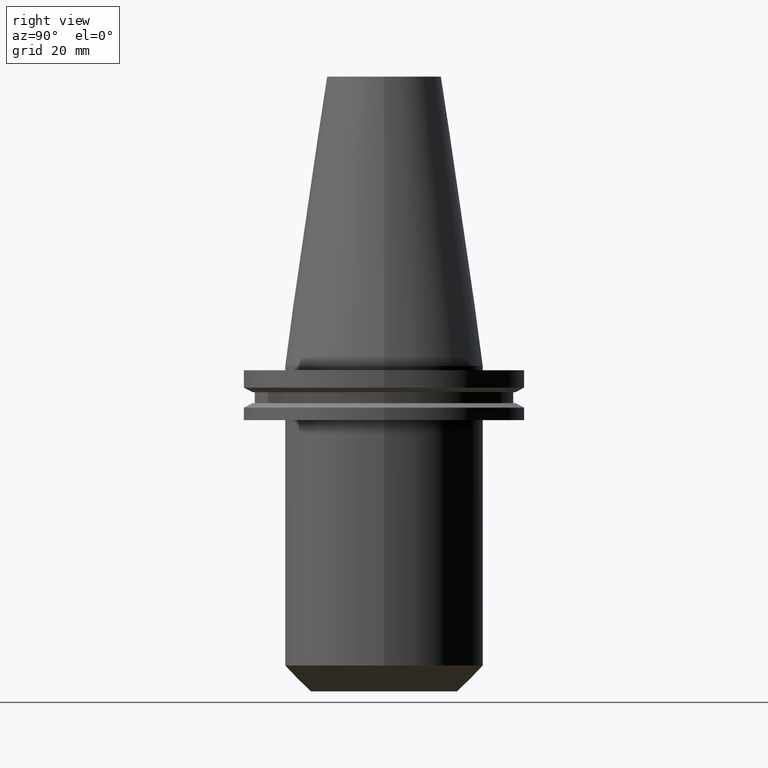
[diagram: clean part render]
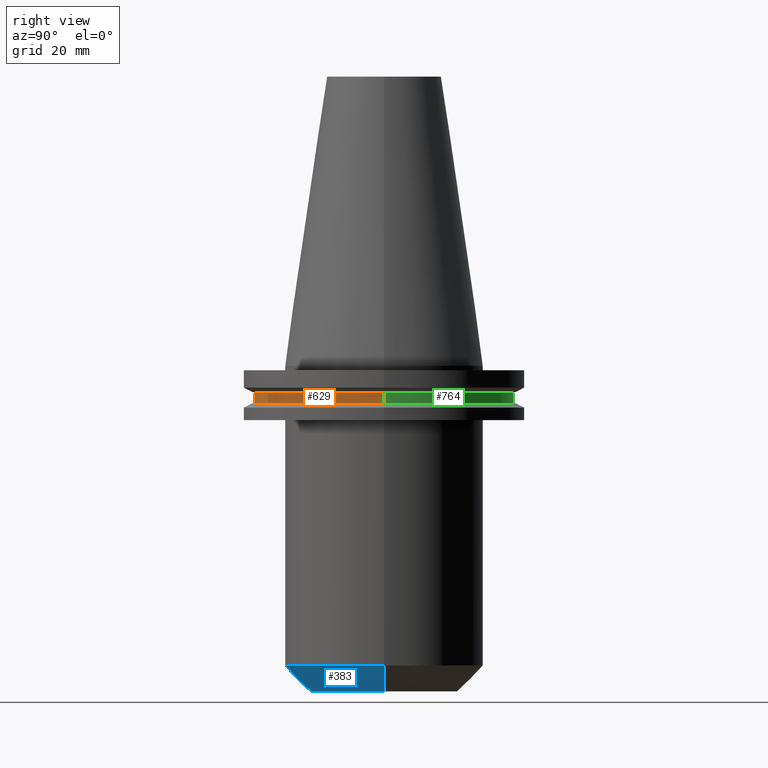
[diagram: same view with three faces highlighted in distinct colors, each labeled with its STEP entity id]
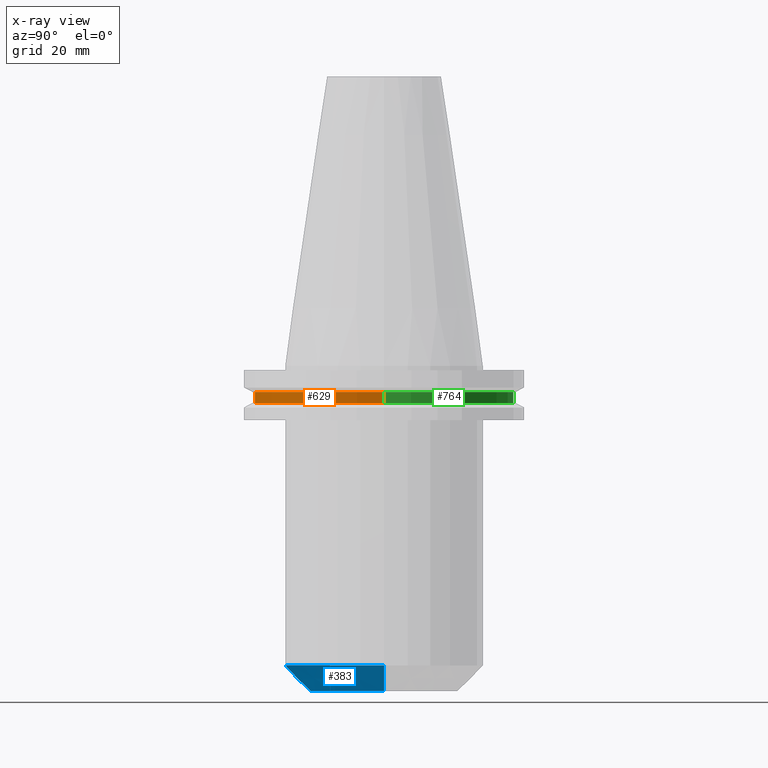
[diagram: x-ray of the same camera — body ghosted, the three highlighted faces saturated]
A machine part, right view with three faces highlighted in distinct colors.
The next image is the same camera in x-ray (body ghosted, the three faces saturated) — at least one of them is partly hidden behind the body in this view.
Their STEP definitions:

[orange] entity #629 — the highlighted cylindrical surface (partial cylindrical patch) has radius 45.645 mm, axis along (-0, -0, 1).
#19 = LINE ( 'NONE', #621, #660 ) ;
#25 = EDGE_CURVE ( 'NONE', #130, #663, #19, .T. ) ;
#85 = CIRCLE ( 'NONE', #745, 45.64500000000000313 ) ;
#95 = ORIENTED_EDGE ( 'NONE', *, *, #277, .F. ) ;
#101 = VECTOR ( 'NONE', #636, 1000.000000000000000 ) ;
#109 = CIRCLE ( 'NONE', #600, 45.64500000000000313 ) ;
#118 = DIRECTION ( 'NONE',  ( 1.000000000000000000, 0.000000000000000000, 0.000000000000000000 ) ) ;
#130 = VERTEX_POINT ( 'NONE', #746 ) ;
#143 = VERTEX_POINT ( 'NONE', #151 ) ;
#151 = CARTESIAN_POINT ( 'NONE',  ( -45.64500000000000313, 5.589900314708094957E-15, -13.05499999999999794 ) ) ;
#182 = CARTESIAN_POINT ( 'NONE',  ( -45.64500000000000313, 5.589900314708094957E-15, 101.5999999999999943 ) ) ;
#210 = CYLINDRICAL_SURFACE ( 'NONE', #307, 45.64500000000000313 ) ;
#272 = CARTESIAN_POINT ( 'NONE',  ( 45.64500000000000313, 0.000000000000000000, -9.204999999999991189 ) ) ;
#275 = DIRECTION ( 'NONE',  ( 1.000000000000000000, 0.000000000000000000, 0.000000000000000000 ) ) ;
#277 = EDGE_CURVE ( 'NONE', #458, #663, #85, .T. ) ;
#307 = AXIS2_PLACEMENT_3D ( 'NONE', #633, #565, #275 ) ;
#319 = EDGE_CURVE ( 'NONE', #143, #130, #109, .T. ) ;
#351 = LINE ( 'NONE', #182, #101 ) ;
#398 = FACE_OUTER_BOUND ( 'NONE', #587, .T. ) ;
#413 = DIRECTION ( 'NONE',  ( -0.000000000000000000, -0.000000000000000000, 1.000000000000000000 ) ) ;
#458 = VERTEX_POINT ( 'NONE', #611 ) ;
#528 = CARTESIAN_POINT ( 'NONE',  ( 0.000000000000000000, 0.000000000000000000, -9.204999999999991189 ) ) ;
#546 = ORIENTED_EDGE ( 'NONE', *, *, #773, .F. ) ;
#556 = ORIENTED_EDGE ( 'NONE', *, *, #319, .T. ) ;
#565 = DIRECTION ( 'NONE',  ( -0.000000000000000000, -0.000000000000000000, 1.000000000000000000 ) ) ;
#586 = DIRECTION ( 'NONE',  ( -0.000000000000000000, -0.000000000000000000, 1.000000000000000000 ) ) ;
#587 = EDGE_LOOP ( 'NONE', ( #546, #556, #676, #95 ) ) ;
#600 = AXIS2_PLACEMENT_3D ( 'NONE', #708, #413, #651 ) ;
#611 = CARTESIAN_POINT ( 'NONE',  ( -45.64500000000000313, 5.589900314708094957E-15, -9.204999999999991189 ) ) ;
#621 = CARTESIAN_POINT ( 'NONE',  ( 45.64500000000000313, 0.000000000000000000, 101.5999999999999943 ) ) ;
#629 = ADVANCED_FACE ( 'NONE', ( #398 ), #210, .T. ) ;
#633 = CARTESIAN_POINT ( 'NONE',  ( 0.000000000000000000, 0.000000000000000000, 101.5999999999999943 ) ) ;
#636 = DIRECTION ( 'NONE',  ( -0.000000000000000000, -0.000000000000000000, 1.000000000000000000 ) ) ;
#651 = DIRECTION ( 'NONE',  ( 1.000000000000000000, 0.000000000000000000, 0.000000000000000000 ) ) ;
#660 = VECTOR ( 'NONE', #670, 1000.000000000000000 ) ;
#663 = VERTEX_POINT ( 'NONE', #272 ) ;
#670 = DIRECTION ( 'NONE',  ( -0.000000000000000000, -0.000000000000000000, 1.000000000000000000 ) ) ;
#676 = ORIENTED_EDGE ( 'NONE', *, *, #25, .T. ) ;
#708 = CARTESIAN_POINT ( 'NONE',  ( 0.000000000000000000, 0.000000000000000000, -13.05499999999999794 ) ) ;
#745 = AXIS2_PLACEMENT_3D ( 'NONE', #528, #586, #118 ) ;
#746 = CARTESIAN_POINT ( 'NONE',  ( 45.64500000000000313, 0.000000000000000000, -13.05499999999999794 ) ) ;
#773 = EDGE_CURVE ( 'NONE', #143, #458, #351, .T. ) ;

[blue] entity #383 — the highlighted conical surface has half-angle 45 deg.
#57 = CARTESIAN_POINT ( 'NONE',  ( -25.82499999999994955, 3.719864652410080914E-15, -114.2999999999999972 ) ) ;
#90 = VECTOR ( 'NONE', #392, 1000.000000000000114 ) ;
#102 = LINE ( 'NONE', #513, #90 ) ;
#161 = EDGE_CURVE ( 'NONE', #274, #679, #728, .T. ) ;
#163 = DIRECTION ( 'NONE',  ( -0.000000000000000000, -0.000000000000000000, 1.000000000000000000 ) ) ;
#214 = ORIENTED_EDGE ( 'NONE', *, *, #267, .F. ) ;
#228 = CARTESIAN_POINT ( 'NONE',  ( 0.000000000000000000, 0.000000000000000000, -114.2999999999999972 ) ) ;
#231 = DIRECTION ( 'NONE',  ( 1.000000000000000000, 0.000000000000000000, 0.000000000000000000 ) ) ;
#240 = CARTESIAN_POINT ( 'NONE',  ( -25.82499999999994955, 3.162650358798033308E-15, -114.2999999999999972 ) ) ;
#254 = ORIENTED_EDGE ( 'NONE', *, *, #161, .T. ) ;
#267 = EDGE_CURVE ( 'NONE', #542, #391, #759, .T. ) ;
#274 = VERTEX_POINT ( 'NONE', #57 ) ;
#276 = DIRECTION ( 'NONE',  ( 1.000000000000000000, 0.000000000000000000, 0.000000000000000000 ) ) ;
#285 = EDGE_CURVE ( 'NONE', #274, #542, #590, .T. ) ;
#361 = CARTESIAN_POINT ( 'NONE',  ( 0.000000000000000000, 0.000000000000000000, -105.2000000000000028 ) ) ;
#383 = ADVANCED_FACE ( 'NONE', ( #596 ), #575, .T. ) ;
#391 = VERTEX_POINT ( 'NONE', #526 ) ;
#392 = DIRECTION ( 'NONE',  ( 0.7071067811865489050, 0.000000000000000000, 0.7071067811865460184 ) ) ;
#417 = DIRECTION ( 'NONE',  ( -0.000000000000000000, -0.000000000000000000, 1.000000000000000000 ) ) ;
#441 = AXIS2_PLACEMENT_3D ( 'NONE', #361, #417, #231 ) ;
#463 = DIRECTION ( 'NONE',  ( -0.000000000000000000, -0.000000000000000000, 1.000000000000000000 ) ) ;
#493 = ORIENTED_EDGE ( 'NONE', *, *, #638, .T. ) ;
#513 = CARTESIAN_POINT ( 'NONE',  ( 25.82499999999994955, 0.000000000000000000, -114.2999999999999972 ) ) ;
#518 = VECTOR ( 'NONE', #534, 1000.000000000000114 ) ;
#526 = CARTESIAN_POINT ( 'NONE',  ( 34.92499999999998295, 0.000000000000000000, -105.2000000000000028 ) ) ;
#534 = DIRECTION ( 'NONE',  ( -0.7071067811865489050, 8.659560562354951347E-17, 0.7071067811865460184 ) ) ;
#542 = VERTEX_POINT ( 'NONE', #687 ) ;
#569 = CARTESIAN_POINT ( 'NONE',  ( 0.000000000000000000, 0.000000000000000000, -114.2999999999999972 ) ) ;
#575 = CONICAL_SURFACE ( 'NONE', #703, 25.82499999999994955, 0.7853981633974503884 ) ;
#590 = LINE ( 'NONE', #240, #518 ) ;
#596 = FACE_OUTER_BOUND ( 'NONE', #667, .T. ) ;
#638 = EDGE_CURVE ( 'NONE', #679, #391, #102, .T. ) ;
#652 = ORIENTED_EDGE ( 'NONE', *, *, #285, .F. ) ;
#667 = EDGE_LOOP ( 'NONE', ( #652, #254, #493, #214 ) ) ;
#679 = VERTEX_POINT ( 'NONE', #749 ) ;
#687 = CARTESIAN_POINT ( 'NONE',  ( -34.92499999999998295, 4.277078946022130098E-15, -105.2000000000000028 ) ) ;
#702 = DIRECTION ( 'NONE',  ( 1.000000000000000000, 0.000000000000000000, 0.000000000000000000 ) ) ;
#703 = AXIS2_PLACEMENT_3D ( 'NONE', #228, #463, #702 ) ;
#713 = AXIS2_PLACEMENT_3D ( 'NONE', #569, #163, #276 ) ;
#728 = CIRCLE ( 'NONE', #713, 25.82499999999994955 ) ;
#749 = CARTESIAN_POINT ( 'NONE',  ( 25.82499999999994955, 0.000000000000000000, -114.2999999999999972 ) ) ;
#759 = CIRCLE ( 'NONE', #441, 34.92499999999998295 ) ;

[green] entity #764 — the highlighted cylindrical surface (partial cylindrical patch) has radius 45.645 mm, axis along (-0, -0, 1).
#19 = LINE ( 'NONE', #621, #660 ) ;
#22 = CIRCLE ( 'NONE', #209, 45.64500000000000313 ) ;
#23 = CARTESIAN_POINT ( 'NONE',  ( 0.000000000000000000, 0.000000000000000000, -13.05499999999999794 ) ) ;
#25 = EDGE_CURVE ( 'NONE', #130, #663, #19, .T. ) ;
#101 = VECTOR ( 'NONE', #636, 1000.000000000000000 ) ;
#115 = CARTESIAN_POINT ( 'NONE',  ( 0.000000000000000000, 0.000000000000000000, 101.5999999999999943 ) ) ;
#129 = DIRECTION ( 'NONE',  ( 1.000000000000000000, 0.000000000000000000, 0.000000000000000000 ) ) ;
#130 = VERTEX_POINT ( 'NONE', #746 ) ;
#143 = VERTEX_POINT ( 'NONE', #151 ) ;
#149 = ORIENTED_EDGE ( 'NONE', *, *, #773, .T. ) ;
#151 = CARTESIAN_POINT ( 'NONE',  ( -45.64500000000000313, 5.589900314708094957E-15, -13.05499999999999794 ) ) ;
#182 = CARTESIAN_POINT ( 'NONE',  ( -45.64500000000000313, 5.589900314708094957E-15, 101.5999999999999943 ) ) ;
#206 = DIRECTION ( 'NONE',  ( -0.000000000000000000, -0.000000000000000000, 1.000000000000000000 ) ) ;
#209 = AXIS2_PLACEMENT_3D ( 'NONE', #402, #216, #287 ) ;
#216 = DIRECTION ( 'NONE',  ( -0.000000000000000000, -0.000000000000000000, 1.000000000000000000 ) ) ;
#219 = EDGE_CURVE ( 'NONE', #663, #458, #22, .T. ) ;
#249 = AXIS2_PLACEMENT_3D ( 'NONE', #23, #206, #129 ) ;
#266 = EDGE_LOOP ( 'NONE', ( #270, #149, #737, #685 ) ) ;
#270 = ORIENTED_EDGE ( 'NONE', *, *, #459, .T. ) ;
#272 = CARTESIAN_POINT ( 'NONE',  ( 45.64500000000000313, 0.000000000000000000, -9.204999999999991189 ) ) ;
#286 = DIRECTION ( 'NONE',  ( 1.000000000000000000, 0.000000000000000000, 0.000000000000000000 ) ) ;
#287 = DIRECTION ( 'NONE',  ( 1.000000000000000000, 0.000000000000000000, 0.000000000000000000 ) ) ;
#351 = LINE ( 'NONE', #182, #101 ) ;
#402 = CARTESIAN_POINT ( 'NONE',  ( 0.000000000000000000, 0.000000000000000000, -9.204999999999991189 ) ) ;
#458 = VERTEX_POINT ( 'NONE', #611 ) ;
#459 = EDGE_CURVE ( 'NONE', #130, #143, #732, .T. ) ;
#531 = AXIS2_PLACEMENT_3D ( 'NONE', #115, #581, #286 ) ;
#581 = DIRECTION ( 'NONE',  ( -0.000000000000000000, -0.000000000000000000, 1.000000000000000000 ) ) ;
#611 = CARTESIAN_POINT ( 'NONE',  ( -45.64500000000000313, 5.589900314708094957E-15, -9.204999999999991189 ) ) ;
#621 = CARTESIAN_POINT ( 'NONE',  ( 45.64500000000000313, 0.000000000000000000, 101.5999999999999943 ) ) ;
#636 = DIRECTION ( 'NONE',  ( -0.000000000000000000, -0.000000000000000000, 1.000000000000000000 ) ) ;
#660 = VECTOR ( 'NONE', #670, 1000.000000000000000 ) ;
#663 = VERTEX_POINT ( 'NONE', #272 ) ;
#670 = DIRECTION ( 'NONE',  ( -0.000000000000000000, -0.000000000000000000, 1.000000000000000000 ) ) ;
#685 = ORIENTED_EDGE ( 'NONE', *, *, #25, .F. ) ;
#732 = CIRCLE ( 'NONE', #249, 45.64500000000000313 ) ;
#737 = ORIENTED_EDGE ( 'NONE', *, *, #219, .F. ) ;
#746 = CARTESIAN_POINT ( 'NONE',  ( 45.64500000000000313, 0.000000000000000000, -13.05499999999999794 ) ) ;
#764 = ADVANCED_FACE ( 'NONE', ( #767 ), #765, .T. ) ;
#765 = CYLINDRICAL_SURFACE ( 'NONE', #531, 45.64500000000000313 ) ;
#767 = FACE_OUTER_BOUND ( 'NONE', #266, .T. ) ;
#773 = EDGE_CURVE ( 'NONE', #143, #458, #351, .T. ) ;